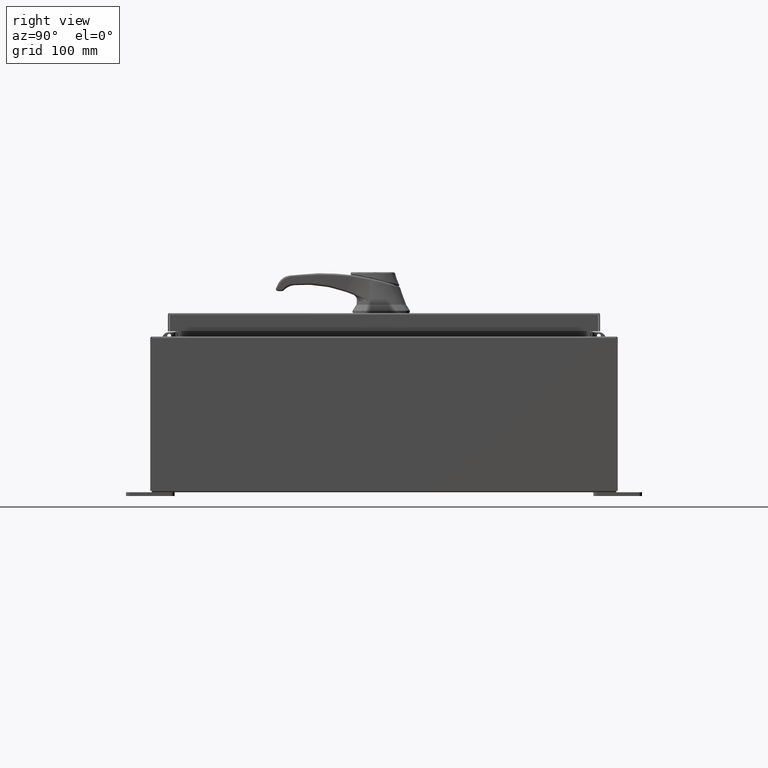
[diagram: clean part render]
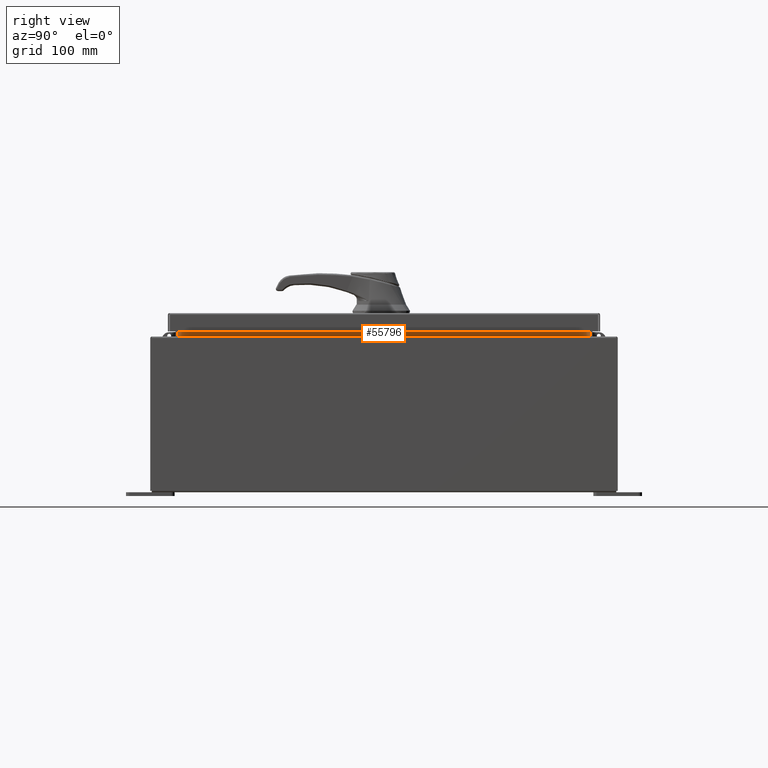
[diagram: same view with one face highlighted and labeled with its STEP entity id]
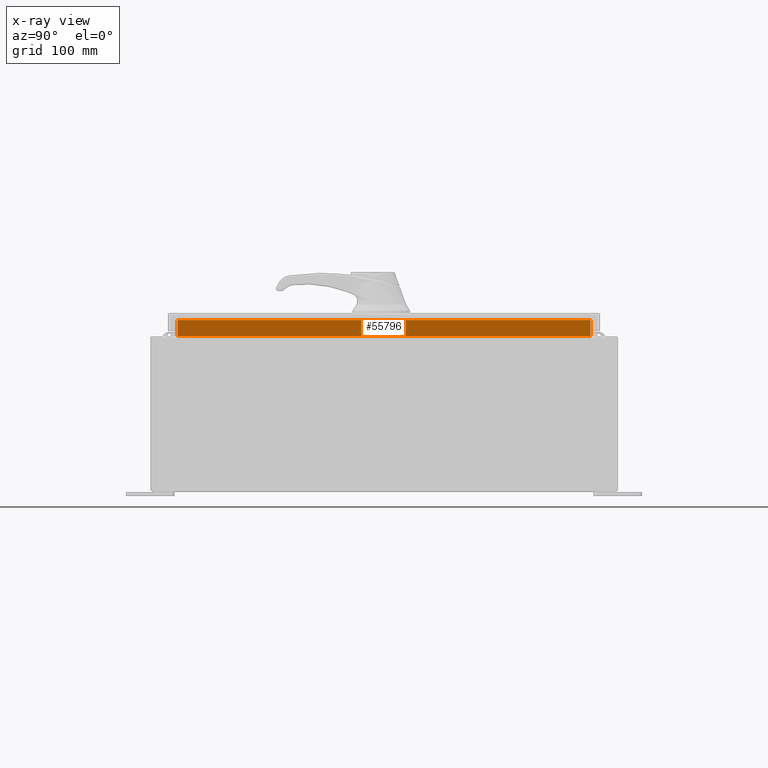
[diagram: x-ray of the same camera — body ghosted, the highlighted face saturated]
A machine part, right view. The second image highlights one B-rep face of the part: STEP entity #55796.
The next image is the same camera in x-ray: the body ghosted, the highlighted face saturated — about 0% of this face is hidden behind the body in this view.
In plain terms, the highlighted planar face has unit normal (1, -0, -0).
Its self-contained STEP definition (entity closure, byte-faithful):
#2141 = DIRECTION ( 'NONE',  ( 1.031494227696241200E-016, -1.000000000000000000, 3.094482683088723800E-016 ) ) ;
#2618 = VERTEX_POINT ( 'NONE', #28509 ) ;
#3948 = CARTESIAN_POINT ( 'NONE',  ( 10.69970000000002800, 10.59374999999999600, 7.925300000000008900 ) ) ;
#5033 = CARTESIAN_POINT ( 'NONE',  ( 10.69970000000002800, -10.59375000000000200, 7.938300000000011500 ) ) ;
#9188 = EDGE_LOOP ( 'NONE', ( #94780, #74652, #64271, #109818 ) ) ;
#18240 = CARTESIAN_POINT ( 'NONE',  ( 10.69970000000003200, -10.59375000000000000, 8.762900000000009000 ) ) ;
#18613 = DIRECTION ( 'NONE',  ( 0.0000000000000000000, 1.000000000000000000, 0.0000000000000000000 ) ) ;
#18990 = CARTESIAN_POINT ( 'NONE',  ( 10.69970000000000900, -1.303383931868035000E-030, -2.527176394925713800E-014 ) ) ;
#19648 = EDGE_CURVE ( 'NONE', #25703, #2618, #69308, .T. ) ;
#23171 = VECTOR ( 'NONE', #18613, 39.37007874015748100 ) ;
#25703 = VERTEX_POINT ( 'NONE', #65135 ) ;
#28509 = CARTESIAN_POINT ( 'NONE',  ( 10.69970000000003200, 10.59374999999999600, 8.762900000000009000 ) ) ;
#30690 = VECTOR ( 'NONE', #110460, 39.37007874015748100 ) ;
#32297 = FACE_OUTER_BOUND ( 'NONE', #9188, .T. ) ;
#36463 = DIRECTION ( 'NONE',  ( -2.361913319930196000E-015, 0.0000000000000000000, -1.000000000000000000 ) ) ;
#37766 = EDGE_CURVE ( 'NONE', #2618, #101960, #66145, .T. ) ;
#47144 = VERTEX_POINT ( 'NONE', #5033 ) ;
#55796 = ADVANCED_FACE ( 'NONE', ( #32297 ), #70971, .T. ) ;
#55998 = DIRECTION ( 'NONE',  ( -2.361913319930196000E-015, -0.0000000000000000000, -1.000000000000000000 ) ) ;
#56446 = CARTESIAN_POINT ( 'NONE',  ( 10.69970000000002800, 10.59374999999998400, 7.938300000000011500 ) ) ;
#58700 = CARTESIAN_POINT ( 'NONE',  ( 10.69970000000003000, -10.59375000000000200, 8.850600000000008900 ) ) ;
#59116 = EDGE_CURVE ( 'NONE', #101960, #47144, #65816, .T. ) ;
#64271 = ORIENTED_EDGE ( 'NONE', *, *, #70328, .F. ) ;
#65135 = CARTESIAN_POINT ( 'NONE',  ( 10.69970000000003000, -10.59375000000000200, 8.762900000000009000 ) ) ;
#65816 = LINE ( 'NONE', #105981, #109092 ) ;
#66145 = LINE ( 'NONE', #3948, #112125 ) ;
#69308 = LINE ( 'NONE', #18240, #23171 ) ;
#70328 = EDGE_CURVE ( 'NONE', #47144, #25703, #71413, .T. ) ;
#70971 = PLANE ( 'NONE',  #79513 ) ;
#71413 = LINE ( 'NONE', #58700, #30690 ) ;
#74652 = ORIENTED_EDGE ( 'NONE', *, *, #19648, .F. ) ;
#79513 = AXIS2_PLACEMENT_3D ( 'NONE', #18990, #88351, #36463 ) ;
#88351 = DIRECTION ( 'NONE',  ( 1.000000000000000000, -1.218149977913431200E-031, -2.361913319930196000E-015 ) ) ;
#94780 = ORIENTED_EDGE ( 'NONE', *, *, #37766, .F. ) ;
#101960 = VERTEX_POINT ( 'NONE', #56446 ) ;
#105981 = CARTESIAN_POINT ( 'NONE',  ( 10.69970000000002800, 10.59374999999999600, 7.938300000000008800 ) ) ;
#109092 = VECTOR ( 'NONE', #2141, 39.37007874015748100 ) ;
#109818 = ORIENTED_EDGE ( 'NONE', *, *, #59116, .F. ) ;
#110460 = DIRECTION ( 'NONE',  ( 2.361913319930198800E-015, -0.0000000000000000000, 1.000000000000000000 ) ) ;
#112125 = VECTOR ( 'NONE', #55998, 39.37007874015748100 ) ;